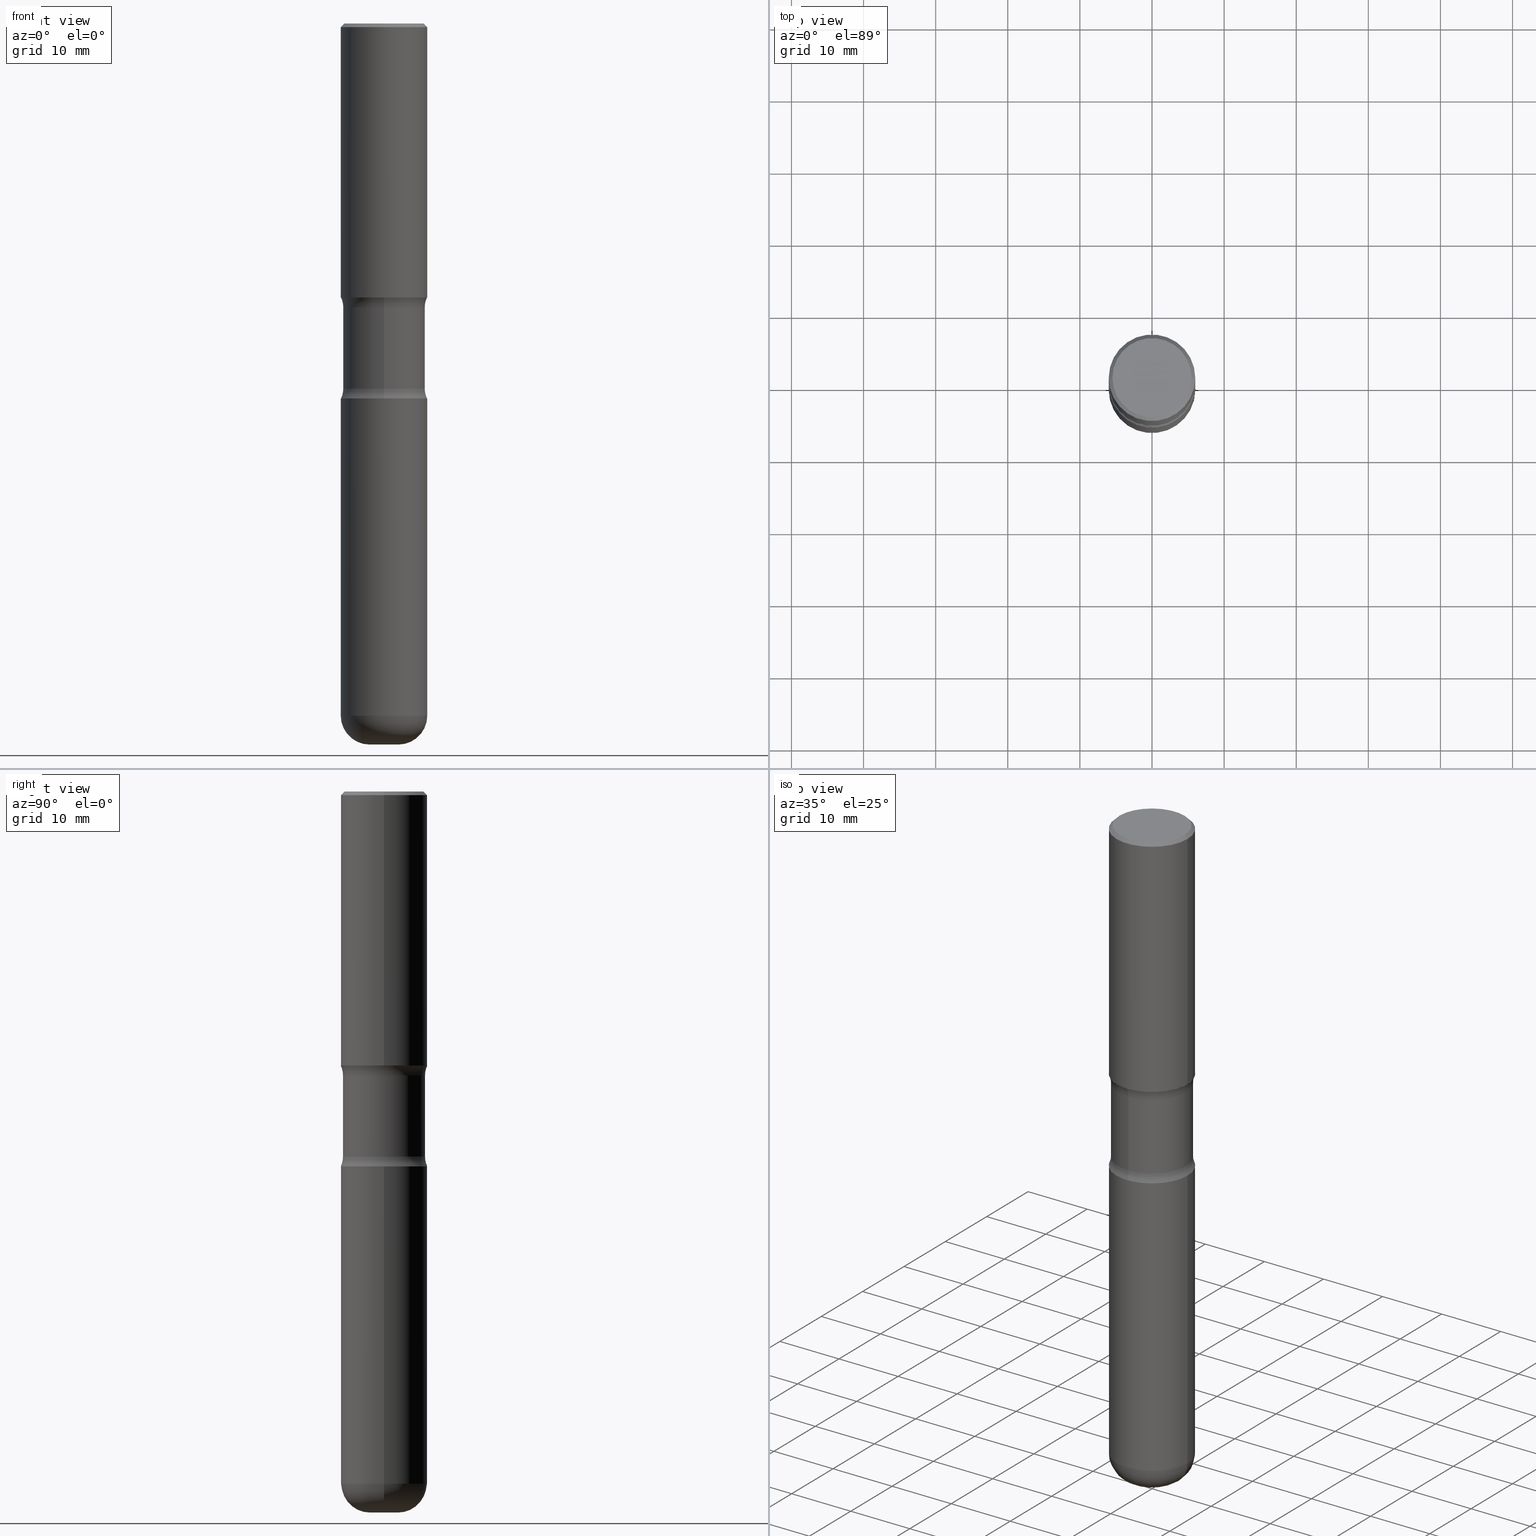
[diagram: canonical four-view strip — front | top / right | iso, engineering-drawing reading convention]
A machine part, canonical four-view strip (front | top / right | iso — engineering-drawing reading convention). The complete STEP part file that produces these views, byte-faithful:
ISO-10303-21;
HEADER;
FILE_DESCRIPTION (( 'STEP AP203' ),
    '1' );
FILE_NAME ('44750.STEP',
    '2024-03-02T02:45:20',
    ( '' ),
    ( '' ),
    'SwSTEP 2.0',
    'SolidWorks 2023',
    '' );
FILE_SCHEMA (( 'CONFIG_CONTROL_DESIGN' ));
ENDSEC;

DATA;
#1 = FACE_OUTER_BOUND ( 'NONE', #223, .T. ) ;
#2 = FACE_OUTER_BOUND ( 'NONE', #418, .T. ) ;
#3 = CIRCLE ( 'NONE', #72, 0.1249999999999999584 ) ;
#4 = FACE_OUTER_BOUND ( 'NONE', #334, .T. ) ;
#5 = PRODUCT_DEFINITION_FORMATION_WITH_SPECIFIED_SOURCE ( 'ANY', '', #66, .NOT_KNOWN. ) ;
#6 = APPROVAL_DATE_TIME ( #531, #339 ) ;
#7 = EDGE_CURVE ( 'NONE', #130, #552, #165, .T. ) ;
#8 = VERTEX_POINT ( 'NONE', #382 ) ;
#9 = APPLICATION_PROTOCOL_DEFINITION ( 'international standard', 'config_control_design', 1994, #52 ) ;
#10 = DIRECTION ( 'NONE',  ( 1.000000000000000000, -6.982962677686266711E-15, 4.876176775795936353E-29 ) ) ;
#11 = SECURITY_CLASSIFICATION_LEVEL ( 'unclassified' ) ;
#12 = CARTESIAN_POINT ( 'NONE',  ( 0.000000000000000000, 0.000000000000000000, 0.000000000000000000 ) ) ;
#13 = AXIS2_PLACEMENT_3D ( 'NONE', #348, #338, #520 ) ;
#14 = CIRCLE ( 'NONE', #142, 0.2362000000000002431 ) ;
#15 = ADVANCED_FACE ( 'NONE', ( #4 ), #179, .F. ) ;
#16 = APPROVAL_PERSON_ORGANIZATION ( #102, #339, #51 ) ;
#17 = VECTOR ( 'NONE', #360, 39.37007874015748143 ) ;
#18 = CALENDAR_DATE ( 2024, 1, 3 ) ;
#19 = FACE_OUTER_BOUND ( 'NONE', #471, .T. ) ;
#20 = LENGTH_MEASURE_WITH_UNIT ( LENGTH_MEASURE( 0.02539999999999999897 ), #314 );
#21 = CARTESIAN_POINT ( 'NONE',  ( 4.890937612370289799E-31, -6.982962677686315028E-17, -0.02000000000000006981 ) ) ;
#22 = DIRECTION ( 'NONE',  ( -1.000000000000000000, 6.982962677686267499E-15, 0.000000000000000000 ) ) ;
#23 = DIRECTION ( 'NONE',  ( -1.000000000000000000, 6.982962677686265922E-15, -4.883557194083112340E-29 ) ) ;
#24 = ORIENTED_EDGE ( 'NONE', *, *, #347, .F. ) ;
#25 = LINE ( 'NONE', #182, #547 ) ;
#26 = CARTESIAN_POINT ( 'NONE',  ( 2.437053974512555849E-15, 0.3489999999999931490, -1.993337582675860142 ) ) ;
#27 = ORIENTED_EDGE ( 'NONE', *, *, #59, .T. ) ;
#28 = CIRCLE ( 'NONE', #412, 0.1250000000000000278 ) ;
#29 = CARTESIAN_POINT ( 'NONE',  ( 4.872945789080098488E-29, -6.962134164869526576E-15, -1.993337582675859032 ) ) ;
#30 = CARTESIAN_POINT ( 'NONE',  ( 3.742693760873325103E-29, -5.479961055837061701E-15, -1.549962417324142638 ) ) ;
#31 = EDGE_LOOP ( 'NONE', ( #415, #184, #181, #326 ) ) ;
#32 = ORIENTED_EDGE ( 'NONE', *, *, #460, .T. ) ;
#33 = DIRECTION ( 'NONE',  ( 6.982962677686265922E-15, 1.000000000000000000, -3.658724991514636908E-15 ) ) ;
#34 = EDGE_CURVE ( 'NONE', #408, #105, #133, .T. ) ;
#35 = DIRECTION ( 'NONE',  ( 2.477013798679166358E-29, -3.446307114162222532E-15, -1.000000000000000000 ) ) ;
#36 = CARTESIAN_POINT ( 'NONE',  ( 9.627810689950883669E-29, -1.374596203102546341E-14, -3.937000000000000277 ) ) ;
#37 = VECTOR ( 'NONE', #121, 39.37007874015748143 ) ;
#38 = ORIENTED_EDGE ( 'NONE', *, *, #215, .T. ) ;
#39 = CARTESIAN_POINT ( 'NONE',  ( 5.006363740022213922E-29, -7.147760596879691357E-15, -2.047200000000000575 ) ) ;
#40 = ORIENTED_EDGE ( 'NONE', *, *, #530, .T. ) ;
#41 = EDGE_CURVE ( 'NONE', #428, #130, #537, .T. ) ;
#42 = DIRECTION ( 'NONE',  ( 2.477013798679166358E-29, -3.446307114162222532E-15, -1.000000000000000000 ) ) ;
#43 = EDGE_LOOP ( 'NONE', ( #430, #300, #258, #127 ) ) ;
#44 = FACE_OUTER_BOUND ( 'NONE', #129, .T. ) ;
#45 = AXIS2_PLACEMENT_3D ( 'NONE', #161, #383, #119 ) ;
#46 = ORIENTED_EDGE ( 'NONE', *, *, #154, .F. ) ;
#47 = LOCAL_TIME ( 21, 45, 20.00000000000000000, #364 ) ;
#48 = VECTOR ( 'NONE', #55, 39.37007874015748143 ) ;
#49 =( CONVERSION_BASED_UNIT ( 'INCH', #20 ) LENGTH_UNIT ( ) NAMED_UNIT ( #204 ) );
#50 = DIRECTION ( 'NONE',  ( 2.445468806185136597E-29, -3.491481338843145583E-15, -1.000000000000000000 ) ) ;
#51 = APPROVAL_ROLE ( '' ) ;
#52 = APPLICATION_CONTEXT ( 'configuration controlled 3d designs of mechanical parts and assemblies' ) ;
#53 = DIRECTION ( 'NONE',  ( -2.477013798679166358E-29, 3.446307114162222138E-15, 1.000000000000000000 ) ) ;
#54 = CARTESIAN_POINT ( 'NONE',  ( -0.07820000000000038032, -1.263866356012384910E-14, -3.779000000000000359 ) ) ;
#55 = DIRECTION ( 'NONE',  ( -2.445468806185136877E-29, 3.491481338843145188E-15, 1.000000000000000000 ) ) ;
#56 = ADVANCED_FACE ( 'NONE', ( #160 ), #341, .T. ) ;
#57 =( NAMED_UNIT ( * ) PLANE_ANGLE_UNIT ( ) SI_UNIT ( $, .RADIAN. ) );
#58 = DIRECTION ( 'NONE',  ( -2.445468806185136597E-29, 3.491481338843145583E-15, 1.000000000000000000 ) ) ;
#59 = EDGE_CURVE ( 'NONE', #456, #247, #291, .T. ) ;
#60 = CARTESIAN_POINT ( 'NONE',  ( 0.000000000000000000, 0.000000000000000000, 0.000000000000000000 ) ) ;
#61 = ORIENTED_EDGE ( 'NONE', *, *, #393, .T. ) ;
#62 = CIRCLE ( 'NONE', #82, 0.2162000000000000033 ) ;
#63 = DIRECTION ( 'NONE',  ( 1.000000000000000000, -6.860497997771530774E-15, 4.841352104320737374E-29 ) ) ;
#64 = ORIENTED_EDGE ( 'NONE', *, *, #7, .F. ) ;
#65 = ORIENTED_EDGE ( 'NONE', *, *, #524, .T. ) ;
#66 = PRODUCT ( '44750', '44750', '', ( #533 ) ) ;
#67 = FACE_OUTER_BOUND ( 'NONE', #282, .T. ) ;
#68 = ORIENTED_EDGE ( 'NONE', *, *, #373, .T. ) ;
#69 = DIRECTION ( 'NONE',  ( -2.445468806185136597E-29, 3.491481338843145583E-15, 1.000000000000000000 ) ) ;
#70 = VERTEX_POINT ( 'NONE', #243 ) ;
#71 = ADVANCED_FACE ( 'NONE', ( #1 ), #109, .F. ) ;
#72 = AXIS2_PLACEMENT_3D ( 'NONE', #26, #23, #553 ) ;
#73 = DIRECTION ( 'NONE',  ( -2.445468806185136597E-29, 3.491481338843145583E-15, 1.000000000000000000 ) ) ;
#74 = ORIENTED_EDGE ( 'NONE', *, *, #34, .F. ) ;
#75 = ORIENTED_EDGE ( 'NONE', *, *, #369, .T. ) ;
#76 = DIRECTION ( 'NONE',  ( 1.000000000000000000, -6.982962677686267499E-15, 0.000000000000000000 ) ) ;
#77 = ORIENTED_EDGE ( 'NONE', *, *, #222, .T. ) ;
#78 = EDGE_CURVE ( 'NONE', #406, #420, #81, .T. ) ;
#79 = CARTESIAN_POINT ( 'NONE',  ( -0.2362000000000002153, -8.492732346318610806E-15, -2.047200000000000575 ) ) ;
#80 = VERTEX_POINT ( 'NONE', #316 ) ;
#81 = CIRCLE ( 'NONE', #251, 0.1579999999999998628 ) ;
#82 = AXIS2_PLACEMENT_3D ( 'NONE', #515, #201, #237 ) ;
#83 = LINE ( 'NONE', #461, #449 ) ;
#84 = AXIS2_PLACEMENT_3D ( 'NONE', #96, #143, #307 ) ;
#85 = DIRECTION ( 'NONE',  ( 0.7071067811865471286, -7.319954787623254468E-15, -0.7071067811865479058 ) ) ;
#86 = DIRECTION ( 'NONE',  ( 2.477013798679166358E-29, -3.446307114162222532E-15, -1.000000000000000000 ) ) ;
#87 = ORIENTED_EDGE ( 'NONE', *, *, #550, .T. ) ;
#88 = EDGE_CURVE ( 'NONE', #508, #420, #220, .T. ) ;
#89 = DIRECTION ( 'NONE',  ( -2.445468806185136597E-29, 3.491481338843145583E-15, 1.000000000000000000 ) ) ;
#90 = EDGE_LOOP ( 'NONE', ( #349, #152, #38, #227 ) ) ;
#91 = APPLICATION_PROTOCOL_DEFINITION ( 'international standard', 'config_control_design', 1994, #320 ) ;
#92 = AXIS2_PLACEMENT_3D ( 'NONE', #450, #63, #116 ) ;
#93 = DIRECTION ( 'NONE',  ( 6.982962677686265922E-15, 1.000000000000000000, -3.469747663417773452E-15 ) ) ;
#94 = EDGE_CURVE ( 'NONE', #473, #70, #498, .T. ) ;
#95 = CARTESIAN_POINT ( 'NONE',  ( 0.000000000000000000, 0.000000000000000000, 0.000000000000000000 ) ) ;
#96 = CARTESIAN_POINT ( 'NONE',  ( 3.658665880933583510E-29, -5.223605231043231238E-15, -1.496100000000000430 ) ) ;
#97 = ORIENTED_EDGE ( 'NONE', *, *, #41, .T. ) ;
#98 = DIRECTION ( 'NONE',  ( 1.000000000000000000, 0.000000000000000000, 0.000000000000000000 ) ) ;
#99 = CARTESIAN_POINT ( 'NONE',  ( 5.006363740022213922E-29, -7.147760596879691357E-15, -2.047200000000000575 ) ) ;
#100 = PLANE ( 'NONE',  #394 ) ;
#101 = AXIS2_PLACEMENT_3D ( 'NONE', #95, #433, #98 ) ;
#102 = PERSON_AND_ORGANIZATION ( #275, #487 ) ;
#103 = DIRECTION ( 'NONE',  ( -6.982962677686265922E-15, -1.000000000000000000, 3.446307114162222138E-15 ) ) ;
#104 = DIRECTION ( 'NONE',  ( -1.000000000000000000, 6.982962677686265922E-15, -4.876176775795935793E-29 ) ) ;
#105 = VERTEX_POINT ( 'NONE', #261 ) ;
#106 = DIRECTION ( 'NONE',  ( -2.445468806185136597E-29, 3.491481338843145583E-15, 1.000000000000000000 ) ) ;
#107 = ORIENTED_EDGE ( 'NONE', *, *, #215, .F. ) ;
#108 = CIRCLE ( 'NONE', #259, 0.2362000000000000210 ) ;
#109 = TOROIDAL_SURFACE ( 'NONE', #405, 0.3490000000000000879, 0.1249999999999999584 ) ;
#110 = DIRECTION ( 'NONE',  ( 1.000000000000000000, -6.982962677686266711E-15, 4.876655451117825523E-29 ) ) ;
#111 = ORIENTED_EDGE ( 'NONE', *, *, #426, .T. ) ;
#112 = FACE_OUTER_BOUND ( 'NONE', #545, .T. ) ;
#113 = ADVANCED_FACE ( 'NONE', ( #312 ), #525, .F. ) ;
#114 = EDGE_LOOP ( 'NONE', ( #32, #490 ) ) ;
#115 = ORIENTED_EDGE ( 'NONE', *, *, #342, .T. ) ;
#116 = DIRECTION ( 'NONE',  ( 6.860497997771532351E-15, 1.000000000000000000, 0.000000000000000000 ) ) ;
#117 = CIRCLE ( 'NONE', #178, 0.07820000000000038032 ) ;
#118 = AXIS2_PLACEMENT_3D ( 'NONE', #252, #400, #207 ) ;
#119 = DIRECTION ( 'NONE',  ( 1.000000000000000000, -6.982962677686265922E-15, 4.883557194083112901E-29 ) ) ;
#120 = CARTESIAN_POINT ( 'NONE',  ( -0.2362000000000000210, 1.579546157692633424E-15, -0.02000000000000006981 ) ) ;
#121 = DIRECTION ( 'NONE',  ( 2.477013798679166639E-29, -3.446307114162222138E-15, -1.000000000000000000 ) ) ;
#122 = CARTESIAN_POINT ( 'NONE',  ( 0.000000000000000000, 0.000000000000000000, 0.000000000000000000 ) ) ;
#123 = ORIENTED_EDGE ( 'NONE', *, *, #470, .F. ) ;
#124 = AXIS2_PLACEMENT_3D ( 'NONE', #224, #221, #216 ) ;
#125 = DIRECTION ( 'NONE',  ( 6.982962677686265922E-15, 1.000000000000000000, -3.469747663417773452E-15 ) ) ;
#126 = AXIS2_PLACEMENT_3D ( 'NONE', #12, #58, #10 ) ;
#127 = ORIENTED_EDGE ( 'NONE', *, *, #369, .F. ) ;
#128 = DIRECTION ( 'NONE',  ( 6.982962677686265922E-15, 1.000000000000000000, -3.469747663417773452E-15 ) ) ;
#129 = EDGE_LOOP ( 'NONE', ( #64, #380, #523, #166 ) ) ;
#130 = VERTEX_POINT ( 'NONE', #435 ) ;
#131 = TOROIDAL_SURFACE ( 'NONE', #45, 0.07820000000000038032, 0.1579999999999998628 ) ;
#132 = FACE_OUTER_BOUND ( 'NONE', #318, .T. ) ;
#133 = CIRCLE ( 'NONE', #518, 0.2362000000000002153 ) ;
#134 = CC_DESIGN_PERSON_AND_ORGANIZATION_ASSIGNMENT ( #206, #391, ( #5 ) ) ;
#135 = PERSON_AND_ORGANIZATION ( #275, #487 ) ;
#136 = DIRECTION ( 'NONE',  ( -2.445468806185136597E-29, 3.491481338843145583E-15, 1.000000000000000000 ) ) ;
#137 = PERSON_AND_ORGANIZATION_ROLE ( 'creator' ) ;
#138 = ADVANCED_FACE ( 'NONE', ( #484 ), #538, .T. ) ;
#139 = DIRECTION ( 'NONE',  ( 7.105427357601001859E-15, 1.000000000000000000, -3.491481338843145583E-15 ) ) ;
#140 = CARTESIAN_POINT ( 'NONE',  ( 3.658665880933583510E-29, -5.223605231043231238E-15, -1.496100000000000430 ) ) ;
#141 = ADVANCED_FACE ( 'NONE', ( #488 ), #356, .F. ) ;
#142 = AXIS2_PLACEMENT_3D ( 'NONE', #337, #42, #125 ) ;
#143 = DIRECTION ( 'NONE',  ( 2.477013798679166358E-29, -3.446307114162222138E-15, -1.000000000000000000 ) ) ;
#144 = DIRECTION ( 'NONE',  ( 1.000000000000000000, -6.982962677686267499E-15, 0.000000000000000000 ) ) ;
#145 = DIRECTION ( 'NONE',  ( 1.000000000000000000, -6.982962677686265922E-15, 4.883557194083112901E-29 ) ) ;
#146 = EDGE_LOOP ( 'NONE', ( #367, #27, #40, #225 ) ) ;
#147 = AXIS2_PLACEMENT_3D ( 'NONE', #351, #442, #398 ) ;
#148 = CIRCLE ( 'NONE', #171, 0.2362000000000004374 ) ;
#149 = DIRECTION ( 'NONE',  ( 2.477013798679166358E-29, -3.446307114162222532E-15, -1.000000000000000000 ) ) ;
#150 = DIRECTION ( 'NONE',  ( 6.982962677686265922E-15, 1.000000000000000000, -3.658724991514636908E-15 ) ) ;
#151 = ADVANCED_FACE ( 'NONE', ( #132 ), #100, .F. ) ;
#152 = ORIENTED_EDGE ( 'NONE', *, *, #41, .F. ) ;
#153 = DIRECTION ( 'NONE',  ( 6.982962677686265922E-15, 1.000000000000000000, -2.439149994343091666E-15 ) ) ;
#154 = EDGE_CURVE ( 'NONE', #130, #428, #557, .T. ) ;
#155 = EDGE_LOOP ( 'NONE', ( #219, #65, #189, #387 ) ) ;
#156 = AXIS2_PLACEMENT_3D ( 'NONE', #30, #541, #497 ) ;
#157 = DIRECTION ( 'NONE',  ( -6.982962677686266711E-15, -1.000000000000000000, 3.491481338843145583E-15 ) ) ;
#158 = DIRECTION ( 'NONE',  ( -2.445468806185136597E-29, 3.491481338843145583E-15, 1.000000000000000000 ) ) ;
#159 = CARTESIAN_POINT ( 'NONE',  ( 0.07820000000000038032, -1.374037566088331776E-14, -3.779000000000000359 ) ) ;
#160 = FACE_OUTER_BOUND ( 'NONE', #238, .T. ) ;
#161 = CARTESIAN_POINT ( 'NONE',  ( 9.241426618573632392E-29, -1.319430797948824935E-14, -3.779000000000000359 ) ) ;
#162 = AXIS2_PLACEMENT_3D ( 'NONE', #168, #392, #172 ) ;
#163 = ADVANCED_FACE ( 'NONE', ( #264 ), #306, .T. ) ;
#164 = CYLINDRICAL_SURFACE ( 'NONE', #358, 0.2240000000000000602 ) ;
#165 = LINE ( 'NONE', #235, #37 ) ;
#166 = ORIENTED_EDGE ( 'NONE', *, *, #331, .F. ) ;
#167 = DATE_AND_TIME ( #255, #422 ) ;
#168 = CARTESIAN_POINT ( 'NONE',  ( 2.437053974512545200E-15, 0.3489999999999947033, -1.549962417324143749 ) ) ;
#169 = EDGE_CURVE ( 'NONE', #70, #467, #177, .T. ) ;
#170 = PERSON_AND_ORGANIZATION ( #275, #487 ) ;
#171 = AXIS2_PLACEMENT_3D ( 'NONE', #459, #73, #144 ) ;
#172 = DIRECTION ( 'NONE',  ( -6.982962677686267499E-15, -1.000000000000000000, 0.000000000000000000 ) ) ;
#173 = LOCAL_TIME ( 21, 45, 20.00000000000000000, #399 ) ;
#174 = DATE_AND_TIME ( #18, #325 ) ;
#175 = DIRECTION ( 'NONE',  ( 1.000000000000000000, -6.982962677686267499E-15, 0.000000000000000000 ) ) ;
#176 = DIRECTION ( 'NONE',  ( 2.477013798679166358E-29, -3.446307114162222532E-15, -1.000000000000000000 ) ) ;
#177 = LINE ( 'NONE', #432, #48 ) ;
#178 = AXIS2_PLACEMENT_3D ( 'NONE', #36, #241, #429 ) ;
#179 = TOROIDAL_SURFACE ( 'NONE', #336, 0.3490000000000001434, 0.1250000000000000555 ) ;
#180 = EDGE_CURVE ( 'NONE', #303, #467, #529, .T. ) ;
#181 = ORIENTED_EDGE ( 'NONE', *, *, #460, .F. ) ;
#182 = CARTESIAN_POINT ( 'NONE',  ( -0.2362000000000002709, 1.678301941865358564E-15, -1.161852468318210018E-29 ) ) ;
#183 = CARTESIAN_POINT ( 'NONE',  ( -2.394313801222228108E-15, -0.3490000000000056390, -1.549962417324141528 ) ) ;
#184 = ORIENTED_EDGE ( 'NONE', *, *, #308, .T. ) ;
#185 = EDGE_LOOP ( 'NONE', ( #281, #61, #87, #74 ) ) ;
#186 = AXIS2_PLACEMENT_3D ( 'NONE', #455, #69, #321 ) ;
#187 = CIRCLE ( 'NONE', #162, 0.1250000000000000278 ) ;
#188 = CARTESIAN_POINT ( 'NONE',  ( 5.219257071676098903E-46, -7.451715851902235727E-32, -2.134256245050205639E-17 ) ) ;
#189 = ORIENTED_EDGE ( 'NONE', *, *, #466, .T. ) ;
#190 = DIRECTION ( 'NONE',  ( 1.000000000000000000, -6.982962677686266711E-15, 4.876176775795936353E-29 ) ) ;
#191 = DIRECTION ( 'NONE',  ( 6.982962677686265133E-15, 1.000000000000000000, -3.446307114162222532E-15 ) ) ;
#192 = AXIS2_PLACEMENT_3D ( 'NONE', #423, #465, #153 ) ;
#193 = DIRECTION ( 'NONE',  ( 2.477013798679166358E-29, -3.446307114162222532E-15, -1.000000000000000000 ) ) ;
#194 = ORIENTED_EDGE ( 'NONE', *, *, #470, .T. ) ;
#195 = CARTESIAN_POINT ( 'NONE',  ( 4.890937612370289799E-31, -6.982962677686315028E-17, -0.02000000000000006981 ) ) ;
#196 = EDGE_LOOP ( 'NONE', ( #97, #512, #245, #454 ) ) ;
#197 = ADVANCED_FACE ( 'NONE', ( #19 ), #535, .F. ) ;
#198 = DIRECTION ( 'NONE',  ( 2.477013798679166639E-29, -3.446307114162222138E-15, -1.000000000000000000 ) ) ;
#199 = DIRECTION ( 'NONE',  ( 1.000000000000000000, -6.982962677686266711E-15, 0.000000000000000000 ) ) ;
#200 = AXIS2_PLACEMENT_3D ( 'NONE', #296, #333, #299 ) ;
#201 = DIRECTION ( 'NONE',  ( -2.445468806185136597E-29, 3.491481338843145583E-15, 1.000000000000000000 ) ) ;
#202 = EDGE_LOOP ( 'NONE', ( #332, #270 ) ) ;
#203 = PRODUCT_RELATED_PRODUCT_CATEGORY ( 'detail', '', ( #66 ) ) ;
#204 = DIMENSIONAL_EXPONENTS ( 1.000000000000000000, 0.000000000000000000, 0.000000000000000000, 0.000000000000000000, 0.000000000000000000, 0.000000000000000000, 0.000000000000000000 ) ;
#205 = DIRECTION ( 'NONE',  ( 1.000000000000000000, -6.982962677686267499E-15, 0.000000000000000000 ) ) ;
#206 = PERSON_AND_ORGANIZATION ( #275, #487 ) ;
#207 = DIRECTION ( 'NONE',  ( 1.000000000000000000, -6.982962677686263555E-15, 0.000000000000000000 ) ) ;
#208 = CALENDAR_DATE ( 2024, 1, 3 ) ;
#209 = AXIS2_PLACEMENT_3D ( 'NONE', #122, #375, #190 ) ;
#210 = DIRECTION ( 'NONE',  ( 1.000000000000000000, -6.982962677686265922E-15, 4.876176775795935793E-29 ) ) ;
#211 = CARTESIAN_POINT ( 'NONE',  ( 5.006363740022213922E-29, -7.147760596879691357E-15, -2.047200000000000575 ) ) ;
#212 = EDGE_CURVE ( 'NONE', #549, #499, #397, .T. ) ;
#213 = APPROVAL_DATE_TIME ( #253, #361 ) ;
#214 = DIRECTION ( 'NONE',  ( 2.477013798679166358E-29, -3.446307114162222532E-15, -1.000000000000000000 ) ) ;
#215 = EDGE_CURVE ( 'NONE', #428, #499, #187, .T. ) ;
#216 = DIRECTION ( 'NONE',  ( 1.000000000000000000, -6.982962677686266711E-15, 0.000000000000000000 ) ) ;
#217 = VECTOR ( 'NONE', #198, 39.37007874015748143 ) ;
#218 = ORIENTED_EDGE ( 'NONE', *, *, #78, .T. ) ;
#219 = ORIENTED_EDGE ( 'NONE', *, *, #78, .F. ) ;
#220 = CIRCLE ( 'NONE', #118, 0.2362000000000003264 ) ;
#221 = DIRECTION ( 'NONE',  ( -2.445468806185136597E-29, 3.491481338843145583E-15, 1.000000000000000000 ) ) ;
#222 = EDGE_CURVE ( 'NONE', #467, #247, #108, .T. ) ;
#223 = EDGE_LOOP ( 'NONE', ( #462, #123, #75, #451 ) ) ;
#224 = CARTESIAN_POINT ( 'NONE',  ( 9.627810689950883669E-29, -1.374596203102546341E-14, -3.937000000000000277 ) ) ;
#225 = ORIENTED_EDGE ( 'NONE', *, *, #180, .F. ) ;
#226 = CARTESIAN_POINT ( 'NONE',  ( 9.241426618573632392E-29, -1.319430797948824935E-14, -3.779000000000000359 ) ) ;
#227 = ORIENTED_EDGE ( 'NONE', *, *, #477, .T. ) ;
#228 = AXIS2_PLACEMENT_3D ( 'NONE', #188, #551, #110 ) ;
#229 = CC_DESIGN_APPROVAL ( #319, ( #271 ) ) ;
#230 = EDGE_CURVE ( 'NONE', #542, #80, #324, .T. ) ;
#231 = DIRECTION ( 'NONE',  ( -2.445468806185136877E-29, 3.491481338843145188E-15, 1.000000000000000000 ) ) ;
#232 = ORIENTED_EDGE ( 'NONE', *, *, #477, .F. ) ;
#233 = ORIENTED_EDGE ( 'NONE', *, *, #347, .T. ) ;
#234 = DIRECTION ( 'NONE',  ( -2.445468806185136877E-29, 3.491481338843145188E-15, 1.000000000000000000 ) ) ;
#235 = CARTESIAN_POINT ( 'NONE',  ( -1.536751551500726315E-15, -0.2240000000000137159, -3.937000000000000277 ) ) ;
#236 = MANIFOLD_SOLID_BREP ( 'Body-Move/Copy2[1]', #478 ) ;
#237 = DIRECTION ( 'NONE',  ( 1.000000000000000000, -6.982962677686266711E-15, 4.876655451117825523E-29 ) ) ;
#238 = EDGE_LOOP ( 'NONE', ( #267, #464, #371, #24 ) ) ;
#239 = AXIS2_PLACEMENT_3D ( 'NONE', #370, #269, #489 ) ;
#240 = APPROVAL_PERSON_ORGANIZATION ( #311, #319, #500 ) ;
#241 = DIRECTION ( 'NONE',  ( -2.445468806185136597E-29, 3.491481338843145583E-15, 1.000000000000000000 ) ) ;
#242 = CC_DESIGN_DATE_AND_TIME_ASSIGNMENT ( #174, #355, ( #271 ) ) ;
#243 = CARTESIAN_POINT ( 'NONE',  ( -0.2362000000000004374, -9.684154870446855490E-16, -1.496100000000000430 ) ) ;
#244 = CARTESIAN_POINT ( 'NONE',  ( 1.564183639801820828E-15, 0.2239999999999864044, -3.937000000000001165 ) ) ;
#245 = ORIENTED_EDGE ( 'NONE', *, *, #401, .F. ) ;
#246 = DIRECTION ( 'NONE',  ( 2.477013798679166358E-29, -3.446307114162222532E-15, -1.000000000000000000 ) ) ;
#247 = VERTEX_POINT ( 'NONE', #330 ) ;
#248 = CC_DESIGN_PERSON_AND_ORGANIZATION_ASSIGNMENT ( #474, #137, ( #5 ) ) ;
#249 = AXIS2_PLACEMENT_3D ( 'NONE', #544, #493, #104 ) ;
#250 = PERSON_AND_ORGANIZATION ( #275, #487 ) ;
#251 = AXIS2_PLACEMENT_3D ( 'NONE', #54, #139, #353 ) ;
#252 = CARTESIAN_POINT ( 'NONE',  ( 9.241426618573632392E-29, -1.319430797948824935E-14, -3.779000000000000359 ) ) ;
#253 = DATE_AND_TIME ( #208, #496 ) ;
#254 = CARTESIAN_POINT ( 'NONE',  ( 3.641281435570124005E-29, -5.248500746264888618E-15, -1.496100000000000430 ) ) ;
#255 = CALENDAR_DATE ( 2024, 1, 3 ) ;
#256 = CARTESIAN_POINT ( 'NONE',  ( 4.874644878630298658E-29, -6.959700971927467721E-15, -1.993337582675859032 ) ) ;
#257 = ADVANCED_FACE ( 'NONE', ( #112 ), #335, .T. ) ;
#258 = ORIENTED_EDGE ( 'NONE', *, *, #331, .T. ) ;
#259 = AXIS2_PLACEMENT_3D ( 'NONE', #21, #136, #175 ) ;
#260 = COORDINATED_UNIVERSAL_TIME_OFFSET ( 5, 0, .BEHIND. ) ;
#261 = CARTESIAN_POINT ( 'NONE',  ( 0.2362000000000002153, -8.797136381349187883E-15, -2.047200000000000575 ) ) ;
#262 = AXIS2_PLACEMENT_3D ( 'NONE', #357, #389, #210 ) ;
#263 = APPROVAL_ROLE ( '' ) ;
#264 = FACE_OUTER_BOUND ( 'NONE', #146, .T. ) ;
#265 = ADVANCED_FACE ( 'NONE', ( #501 ), #266, .T. ) ;
#266 = PLANE ( 'NONE',  #249 ) ;
#267 = ORIENTED_EDGE ( 'NONE', *, *, #94, .T. ) ;
#268 = ADVANCED_FACE ( 'NONE', ( #67 ), #366, .T. ) ;
#269 = DIRECTION ( 'NONE',  ( 2.438088387897960049E-29, -3.491481338843145188E-15, -1.000000000000000000 ) ) ;
#270 = ORIENTED_EDGE ( 'NONE', *, *, #524, .F. ) ;
#271 = SECURITY_CLASSIFICATION ( '', '', #11 ) ;
#272 = ORIENTED_EDGE ( 'NONE', *, *, #212, .T. ) ;
#273 = LINE ( 'NONE', #453, #403 ) ;
#274 = ORIENTED_EDGE ( 'NONE', *, *, #298, .T. ) ;
#275 = PERSON ( 'UNSPECIFIED', 'UNSPECIFIED', 'UNSPECIFIED', ('UNSPECIFIED'), ('UNSPECIFIED'), ('UNSPECIFIED') ) ;
#276 = DESIGN_CONTEXT ( 'detailed design', #320, 'design' ) ;
#277 = DIRECTION ( 'NONE',  ( 2.477013798679166358E-29, -3.446307114162222532E-15, -1.000000000000000000 ) ) ;
#278 = ORIENTED_EDGE ( 'NONE', *, *, #230, .T. ) ;
#279 = ADVANCED_FACE ( 'NONE', ( #323 ), #414, .F. ) ;
#280 = FACE_OUTER_BOUND ( 'NONE', #90, .T. ) ;
#281 = ORIENTED_EDGE ( 'NONE', *, *, #308, .F. ) ;
#282 = EDGE_LOOP ( 'NONE', ( #425, #115, #233, #505 ) ) ;
#283 = AXIS2_PLACEMENT_3D ( 'NONE', #404, #277, #150 ) ;
#284 = CC_DESIGN_APPROVAL ( #361, ( #354 ) ) ;
#285 = AXIS2_PLACEMENT_3D ( 'NONE', #482, #480, #310 ) ;
#286 = CARTESIAN_POINT ( 'NONE',  ( 9.687424416766102159E-29, -1.366059178122345804E-14, -3.937000000000000721 ) ) ;
#287 = DIRECTION ( 'NONE',  ( 6.982962677686265922E-15, 1.000000000000000000, -2.439149994343091666E-15 ) ) ;
#288 = ORIENTED_EDGE ( 'NONE', *, *, #328, .T. ) ;
#289 = EDGE_CURVE ( 'NONE', #542, #552, #352, .T. ) ;
#290 = FACE_OUTER_BOUND ( 'NONE', #155, .T. ) ;
#291 = LINE ( 'NONE', #384, #295 ) ;
#292 = AXIS2_PLACEMENT_3D ( 'NONE', #159, #157, #559 ) ;
#293 = AXIS2_PLACEMENT_3D ( 'NONE', #463, #193, #128 ) ;
#294 =( GEOMETRIC_REPRESENTATION_CONTEXT ( 3 ) GLOBAL_UNCERTAINTY_ASSIGNED_CONTEXT ( ( #511 ) ) GLOBAL_UNIT_ASSIGNED_CONTEXT ( ( #49, #57, #483 ) ) REPRESENTATION_CONTEXT ( 'NONE', 'WORKASPACE' ) );
#295 = VECTOR ( 'NONE', #85, 39.37007874015748143 ) ;
#296 = CARTESIAN_POINT ( 'NONE',  ( 4.890937612370289799E-31, -6.982962677686315028E-17, -0.02000000000000006981 ) ) ;
#297 = CARTESIAN_POINT ( 'NONE',  ( 0.000000000000000000, 0.000000000000000000, 0.000000000000000000 ) ) ;
#298 = EDGE_CURVE ( 'NONE', #554, #406, #365, .T. ) ;
#299 = DIRECTION ( 'NONE',  ( -1.000000000000000000, 6.982962677686267499E-15, 0.000000000000000000 ) ) ;
#300 = ORIENTED_EDGE ( 'NONE', *, *, #289, .T. ) ;
#301 = ADVANCED_FACE ( 'NONE', ( #280 ), #437, .F. ) ;
#302 = PERSON_AND_ORGANIZATION_ROLE ( 'design_owner' ) ;
#303 = VERTEX_POINT ( 'NONE', #447 ) ;
#304 = CIRCLE ( 'NONE', #228, 0.2162000000000000033 ) ;
#305 = COORDINATED_UNIVERSAL_TIME_OFFSET ( 5, 0, .BEHIND. ) ;
#306 = CONICAL_SURFACE ( 'NONE', #327, 0.2362000000000000210, 0.7853981633974477239 ) ;
#307 = DIRECTION ( 'NONE',  ( 6.982962677686265922E-15, 1.000000000000000000, -3.446307114162222138E-15 ) ) ;
#308 = EDGE_CURVE ( 'NONE', #420, #408, #25, .T. ) ;
#309 = PERSON_AND_ORGANIZATION_ROLE ( 'creator' ) ;
#310 = DIRECTION ( 'NONE',  ( -1.000000000000000000, 6.982962677686265922E-15, -4.876176775795935793E-29 ) ) ;
#311 = PERSON_AND_ORGANIZATION ( #275, #487 ) ;
#312 = FACE_OUTER_BOUND ( 'NONE', #114, .T. ) ;
#313 = AXIS2_PLACEMENT_3D ( 'NONE', #60, #106, #504 ) ;
#314 =( LENGTH_UNIT ( ) NAMED_UNIT ( * ) SI_UNIT ( $, .METRE. ) );
#315 = CC_DESIGN_APPROVAL ( #339, ( #5 ) ) ;
#316 = CARTESIAN_POINT ( 'NONE',  ( 1.649375784469547210E-15, 0.2361999999999930544, -2.047200000000001463 ) ) ;
#317 = DIRECTION ( 'NONE',  ( -2.445468806185136597E-29, 3.491481338843145583E-15, 1.000000000000000000 ) ) ;
#318 = EDGE_LOOP ( 'NONE', ( #194, #278 ) ) ;
#319 = APPROVAL ( #359, 'UNSPECIFIED' ) ;
#320 = APPLICATION_CONTEXT ( 'configuration controlled 3d designs of mechanical parts and assemblies' ) ;
#321 = DIRECTION ( 'NONE',  ( 1.000000000000000000, -6.982962677686263555E-15, 0.000000000000000000 ) ) ;
#322 = AXIS2_PLACEMENT_3D ( 'NONE', #297, #158, #510 ) ;
#323 = FACE_OUTER_BOUND ( 'NONE', #413, .T. ) ;
#324 = CIRCLE ( 'NONE', #421, 0.2362000000000002431 ) ;
#325 = LOCAL_TIME ( 21, 45, 20.00000000000000000, #481 ) ;
#326 = ORIENTED_EDGE ( 'NONE', *, *, #550, .F. ) ;
#327 = AXIS2_PLACEMENT_3D ( 'NONE', #445, #50, #22 ) ;
#328 = EDGE_CURVE ( 'NONE', #456, #303, #304, .T. ) ;
#329 = DIRECTION ( 'NONE',  ( 6.982962677686265133E-15, 1.000000000000000000, -3.446307114162222532E-15 ) ) ;
#330 = CARTESIAN_POINT ( 'NONE',  ( 0.2362000000000000210, -1.690279253850499166E-15, -0.02000000000000006981 ) ) ;
#331 = EDGE_CURVE ( 'NONE', #552, #8, #395, .T. ) ;
#332 = ORIENTED_EDGE ( 'NONE', *, *, #298, .F. ) ;
#333 = DIRECTION ( 'NONE',  ( 2.445468806185136597E-29, -3.491481338843145583E-15, -1.000000000000000000 ) ) ;
#334 = EDGE_LOOP ( 'NONE', ( #46, #68, #272, #107 ) ) ;
#335 = TOROIDAL_SURFACE ( 'NONE', #486, 0.07820000000000038032, 0.1579999999999998628 ) ;
#336 = AXIS2_PLACEMENT_3D ( 'NONE', #517, #35, #191 ) ;
#337 = CARTESIAN_POINT ( 'NONE',  ( 5.006363740022213922E-29, -7.147760596879691357E-15, -2.047200000000000575 ) ) ;
#338 = DIRECTION ( 'NONE',  ( 2.477013798679166358E-29, -3.446307114162222532E-15, -1.000000000000000000 ) ) ;
#339 = APPROVAL ( #396, 'UNSPECIFIED' ) ;
#340 = CARTESIAN_POINT ( 'NONE',  ( 0.2362000000000002709, -1.484368376395774588E-14, -3.779000000000000359 ) ) ;
#341 = CYLINDRICAL_SURFACE ( 'NONE', #322, 0.2362000000000002431 ) ;
#342 = EDGE_CURVE ( 'NONE', #70, #473, #148, .T. ) ;
#343 = FACE_OUTER_BOUND ( 'NONE', #185, .T. ) ;
#344 = ORIENTED_EDGE ( 'NONE', *, *, #59, .F. ) ;
#345 = CIRCLE ( 'NONE', #292, 0.1579999999999998628 ) ;
#346 = CARTESIAN_POINT ( 'NONE',  ( 1.649375784469533799E-15, 0.2361999999999949973, -1.496100000000001318 ) ) ;
#347 = EDGE_CURVE ( 'NONE', #473, #247, #273, .T. ) ;
#348 = CARTESIAN_POINT ( 'NONE',  ( 3.774699386512239440E-29, -5.434127178275053399E-15, -1.549962417324142638 ) ) ;
#349 = ORIENTED_EDGE ( 'NONE', *, *, #373, .F. ) ;
#350 = CALENDAR_DATE ( 2024, 1, 3 ) ;
#351 = CARTESIAN_POINT ( 'NONE',  ( 3.774699386512239440E-29, -5.434127178275053399E-15, -1.549962417324142638 ) ) ;
#352 = CIRCLE ( 'NONE', #92, 0.1249999999999999584 ) ;
#353 = DIRECTION ( 'NONE',  ( -1.000000000000000000, 7.105427357600997914E-15, 0.000000000000000000 ) ) ;
#354 = PRODUCT_DEFINITION ( 'UNKNOWN', '', #5, #276 ) ;
#355 = DATE_TIME_ROLE ( 'classification_date' ) ;
#356 = PLANE ( 'NONE',  #262 ) ;
#357 = CARTESIAN_POINT ( 'NONE',  ( 3.658665880933583510E-29, -5.223605231043231238E-15, -1.496100000000000430 ) ) ;
#358 = AXIS2_PLACEMENT_3D ( 'NONE', #286, #246, #287 ) ;
#359 = APPROVAL_STATUS ( 'not_yet_approved' ) ;
#360 = DIRECTION ( 'NONE',  ( -0.7071067811865471286, 2.468850131082252722E-15, -0.7071067811865479058 ) ) ;
#361 = APPROVAL ( #388, 'UNSPECIFIED' ) ;
#362 = DIRECTION ( 'NONE',  ( 6.860497997771532351E-15, 1.000000000000000000, 0.000000000000000000 ) ) ;
#363 = DIRECTION ( 'NONE',  ( -2.445468806185136877E-29, 3.491481338843145188E-15, 1.000000000000000000 ) ) ;
#364 = COORDINATED_UNIVERSAL_TIME_OFFSET ( 5, 0, .BEHIND. ) ;
#365 = CIRCLE ( 'NONE', #124, 0.07820000000000038032 ) ;
#366 = CYLINDRICAL_SURFACE ( 'NONE', #313, 0.2362000000000002431 ) ;
#367 = ORIENTED_EDGE ( 'NONE', *, *, #328, .F. ) ;
#368 = AXIS2_PLACEMENT_3D ( 'NONE', #140, #532, #205 ) ;
#369 = EDGE_CURVE ( 'NONE', #80, #8, #3, .T. ) ;
#370 = CARTESIAN_POINT ( 'NONE',  ( 1.509716530915770718E-15, 0.2162000000000000033, -7.655295466831390880E-16 ) ) ;
#371 = ORIENTED_EDGE ( 'NONE', *, *, #530, .F. ) ;
#372 = FACE_OUTER_BOUND ( 'NONE', #43, .T. ) ;
#373 = EDGE_CURVE ( 'NONE', #130, #549, #28, .T. ) ;
#374 = EDGE_LOOP ( 'NONE', ( #539, #457 ) ) ;
#375 = DIRECTION ( 'NONE',  ( -2.445468806185136597E-29, 3.491481338843145583E-15, 1.000000000000000000 ) ) ;
#376 = CC_DESIGN_PERSON_AND_ORGANIZATION_ASSIGNMENT ( #135, #302, ( #66 ) ) ;
#377 = CARTESIAN_POINT ( 'NONE',  ( 5.006363740022213922E-29, -7.147760596879691357E-15, -2.047200000000000575 ) ) ;
#378 = TOROIDAL_SURFACE ( 'NONE', #536, 0.3490000000000000879, 0.1249999999999999584 ) ;
#379 = CYLINDRICAL_SURFACE ( 'NONE', #192, 0.2240000000000000602 ) ;
#380 = ORIENTED_EDGE ( 'NONE', *, *, #154, .T. ) ;
#381 = CARTESIAN_POINT ( 'NONE',  ( 1.564183639801761664E-15, 0.2239999999999945923, -1.549962417324143304 ) ) ;
#382 = CARTESIAN_POINT ( 'NONE',  ( 1.564183639801773102E-15, 0.2239999999999931213, -1.993337582675859698 ) ) ;
#383 = DIRECTION ( 'NONE',  ( -2.445468806185136597E-29, 3.491481338843145583E-15, 1.000000000000000000 ) ) ;
#384 = CARTESIAN_POINT ( 'NONE',  ( 0.2362000000000000210, -1.690279253850499166E-15, -0.02000000000000006981 ) ) ;
#385 = CIRCLE ( 'NONE', #546, 0.2240000000000000879 ) ;
#386 = FACE_OUTER_BOUND ( 'NONE', #196, .T. ) ;
#387 = ORIENTED_EDGE ( 'NONE', *, *, #393, .F. ) ;
#388 = APPROVAL_STATUS ( 'not_yet_approved' ) ;
#389 = DIRECTION ( 'NONE',  ( -2.438088387897960049E-29, 3.491481338843145188E-15, 1.000000000000000000 ) ) ;
#390 = ADVANCED_FACE ( 'NONE', ( #372 ), #378, .F. ) ;
#391 = PERSON_AND_ORGANIZATION_ROLE ( 'design_supplier' ) ;
#392 = DIRECTION ( 'NONE',  ( -1.000000000000000000, 6.982962677686265922E-15, -4.883557194083112340E-29 ) ) ;
#393 = EDGE_CURVE ( 'NONE', #420, #508, #476, .T. ) ;
#394 = AXIS2_PLACEMENT_3D ( 'NONE', #211, #53, #103 ) ;
#395 = CIRCLE ( 'NONE', #283, 0.2240000000000000879 ) ;
#396 = APPROVAL_STATUS ( 'not_yet_approved' ) ;
#397 = CIRCLE ( 'NONE', #441, 0.2362000000000002431 ) ;
#398 = DIRECTION ( 'NONE',  ( 6.982962677686265922E-15, 1.000000000000000000, -3.658724991514637697E-15 ) ) ;
#399 = COORDINATED_UNIVERSAL_TIME_OFFSET ( 5, 0, .BEHIND. ) ;
#400 = DIRECTION ( 'NONE',  ( -2.445468806185136597E-29, 3.491481338843145583E-15, 1.000000000000000000 ) ) ;
#401 = EDGE_CURVE ( 'NONE', #8, #552, #385, .T. ) ;
#402 = CARTESIAN_POINT ( 'NONE',  ( -0.2362000000000000210, 1.579546157692633424E-15, -0.02000000000000006981 ) ) ;
#403 = VECTOR ( 'NONE', #231, 39.37007874015748143 ) ;
#404 = CARTESIAN_POINT ( 'NONE',  ( 4.872945789080098488E-29, -6.962134164869526576E-15, -1.993337582675859032 ) ) ;
#405 = AXIS2_PLACEMENT_3D ( 'NONE', #256, #214, #436 ) ;
#406 = VERTEX_POINT ( 'NONE', #556 ) ;
#407 = DIRECTION ( 'NONE',  ( 6.982962677686265922E-15, 1.000000000000000000, -3.469747663417773452E-15 ) ) ;
#408 = VERTEX_POINT ( 'NONE', #79 ) ;
#409 = DIRECTION ( 'NONE',  ( 1.000000000000000000, -6.860497997771530774E-15, 4.841352104320737374E-29 ) ) ;
#410 = ORIENTED_EDGE ( 'NONE', *, *, #426, .F. ) ;
#411 = APPROVAL_DATE_TIME ( #492, #319 ) ;
#412 = AXIS2_PLACEMENT_3D ( 'NONE', #183, #409, #362 ) ;
#413 = EDGE_LOOP ( 'NONE', ( #111, #288 ) ) ;
#414 = PLANE ( 'NONE',  #239 ) ;
#415 = ORIENTED_EDGE ( 'NONE', *, *, #88, .T. ) ;
#416 = CC_DESIGN_PERSON_AND_ORGANIZATION_ASSIGNMENT ( #170, #528, ( #271 ) ) ;
#417 = CARTESIAN_POINT ( 'NONE',  ( -1.620449627073587155E-15, -0.2362000000000073763, -2.047200000000000131 ) ) ;
#418 = EDGE_LOOP ( 'NONE', ( #344, #410, #514, #77 ) ) ;
#419 = CARTESIAN_POINT ( 'NONE',  ( 0.2162000000000000033, -1.586759460484351988E-15, -2.134256245049122805E-17 ) ) ;
#420 = VERTEX_POINT ( 'NONE', #427 ) ;
#421 = AXIS2_PLACEMENT_3D ( 'NONE', #99, #176, #407 ) ;
#422 = LOCAL_TIME ( 21, 45, 20.00000000000000000, #260 ) ;
#423 = CARTESIAN_POINT ( 'NONE',  ( 9.687424416766102159E-29, -1.366059178122345804E-14, -3.937000000000000721 ) ) ;
#424 = ADVANCED_BREP_SHAPE_REPRESENTATION ( '44750', ( #236, #448, #444, #101 ), #294 ) ;
#425 = ORIENTED_EDGE ( 'NONE', *, *, #169, .F. ) ;
#426 = EDGE_CURVE ( 'NONE', #303, #456, #62, .T. ) ;
#427 = CARTESIAN_POINT ( 'NONE',  ( -0.2362000000000002709, -1.151600603762289138E-14, -3.779000000000000359 ) ) ;
#428 = VERTEX_POINT ( 'NONE', #381 ) ;
#429 = DIRECTION ( 'NONE',  ( 1.000000000000000000, -6.982962677686266711E-15, 0.000000000000000000 ) ) ;
#430 = ORIENTED_EDGE ( 'NONE', *, *, #230, .F. ) ;
#431 = PERSON_AND_ORGANIZATION ( #275, #487 ) ;
#432 = CARTESIAN_POINT ( 'NONE',  ( -0.2362000000000002431, 1.678301941865358366E-15, -1.161852468318209878E-29 ) ) ;
#433 = DIRECTION ( 'NONE',  ( 0.000000000000000000, 0.000000000000000000, 1.000000000000000000 ) ) ;
#434 = CC_DESIGN_DATE_AND_TIME_ASSIGNMENT ( #167, #440, ( #354 ) ) ;
#435 = CARTESIAN_POINT ( 'NONE',  ( -1.578600589287193318E-15, -0.2240000000000054448, -1.549962417324141750 ) ) ;
#436 = DIRECTION ( 'NONE',  ( 6.982962677686265133E-15, 1.000000000000000000, -3.446307114162222532E-15 ) ) ;
#437 = TOROIDAL_SURFACE ( 'NONE', #156, 0.3490000000000001434, 0.1250000000000000555 ) ;
#438 = APPROVAL_PERSON_ORGANIZATION ( #250, #361, #263 ) ;
#439 = ORIENTED_EDGE ( 'NONE', *, *, #212, .F. ) ;
#440 = DATE_TIME_ROLE ( 'creation_date' ) ;
#441 = AXIS2_PLACEMENT_3D ( 'NONE', #254, #475, #93 ) ;
#442 = DIRECTION ( 'NONE',  ( 2.477013798679166358E-29, -3.446307114162222532E-15, -1.000000000000000000 ) ) ;
#443 = EDGE_CURVE ( 'NONE', #428, #8, #513, .T. ) ;
#444 = MANIFOLD_SOLID_BREP ( 'Body-Move/Copy2[4]', #527 ) ;
#445 = CARTESIAN_POINT ( 'NONE',  ( 4.890937612370289799E-31, -6.982962677686315028E-17, -0.02000000000000006981 ) ) ;
#446 = CALENDAR_DATE ( 2024, 1, 3 ) ;
#447 = CARTESIAN_POINT ( 'NONE',  ( -0.2162000000000000033, 1.544631344304202170E-15, -2.134256245051273683E-17 ) ) ;
#448 = MANIFOLD_SOLID_BREP ( 'Body-Move/Copy2[2]', #495 ) ;
#449 = VECTOR ( 'NONE', #234, 39.37007874015748143 ) ;
#450 = CARTESIAN_POINT ( 'NONE',  ( -2.394313801222216275E-15, -0.3490000000000070268, -1.993337582675857922 ) ) ;
#451 = ORIENTED_EDGE ( 'NONE', *, *, #401, .T. ) ;
#452 = ORIENTED_EDGE ( 'NONE', *, *, #88, .F. ) ;
#453 = CARTESIAN_POINT ( 'NONE',  ( 0.2362000000000002431, -1.649375784469497906E-15, 1.151752954443001209E-29 ) ) ;
#454 = ORIENTED_EDGE ( 'NONE', *, *, #443, .F. ) ;
#455 = CARTESIAN_POINT ( 'NONE',  ( 9.241426618573632392E-29, -1.319430797948824935E-14, -3.779000000000000359 ) ) ;
#456 = VERTEX_POINT ( 'NONE', #419 ) ;
#457 = ORIENTED_EDGE ( 'NONE', *, *, #342, .F. ) ;
#458 = CONICAL_SURFACE ( 'NONE', #200, 0.2362000000000000210, 0.7853981633974477239 ) ;
#459 = CARTESIAN_POINT ( 'NONE',  ( 3.658665880933583510E-29, -5.223605231043231238E-15, -1.496100000000000430 ) ) ;
#460 = EDGE_CURVE ( 'NONE', #105, #408, #555, .T. ) ;
#461 = CARTESIAN_POINT ( 'NONE',  ( 0.2362000000000002709, -1.649375784469498103E-15, 1.151752954443001489E-29 ) ) ;
#462 = ORIENTED_EDGE ( 'NONE', *, *, #289, .F. ) ;
#463 = CARTESIAN_POINT ( 'NONE',  ( 3.641281435570124005E-29, -5.248500746264888618E-15, -1.496100000000000430 ) ) ;
#464 = ORIENTED_EDGE ( 'NONE', *, *, #169, .T. ) ;
#465 = DIRECTION ( 'NONE',  ( 2.477013798679166358E-29, -3.446307114162222532E-15, -1.000000000000000000 ) ) ;
#466 = EDGE_CURVE ( 'NONE', #554, #508, #345, .T. ) ;
#467 = VERTEX_POINT ( 'NONE', #120 ) ;
#468 = CIRCLE ( 'NONE', #293, 0.2362000000000002431 ) ;
#469 = CC_DESIGN_SECURITY_CLASSIFICATION ( #271, ( #5 ) ) ;
#470 = EDGE_CURVE ( 'NONE', #80, #542, #14, .T. ) ;
#471 = EDGE_LOOP ( 'NONE', ( #232, #439 ) ) ;
#472 = CARTESIAN_POINT ( 'NONE',  ( 0.2362000000000004374, -6.872981015512730918E-15, -1.496100000000000430 ) ) ;
#473 = VERTEX_POINT ( 'NONE', #472 ) ;
#474 = PERSON_AND_ORGANIZATION ( #275, #487 ) ;
#475 = DIRECTION ( 'NONE',  ( 2.477013798679166358E-29, -3.446307114162222532E-15, -1.000000000000000000 ) ) ;
#476 = CIRCLE ( 'NONE', #186, 0.2362000000000003264 ) ;
#477 = EDGE_CURVE ( 'NONE', #499, #549, #468, .T. ) ;
#478 = CLOSED_SHELL ( 'NONE', ( #138, #257, #265, #521, #485, #113 ) ) ;
#479 = CARTESIAN_POINT ( 'NONE',  ( -1.578600589287180697E-15, -0.2240000000000070546, -1.993337582675858144 ) ) ;
#480 = DIRECTION ( 'NONE',  ( 2.438088387897960049E-29, -3.491481338843145188E-15, -1.000000000000000000 ) ) ;
#481 = COORDINATED_UNIVERSAL_TIME_OFFSET ( 5, 0, .BEHIND. ) ;
#482 = CARTESIAN_POINT ( 'NONE',  ( 5.006363740022213922E-29, -7.147760596879691357E-15, -2.047200000000000575 ) ) ;
#483 =( NAMED_UNIT ( * ) SI_UNIT ( $, .STERADIAN. ) SOLID_ANGLE_UNIT ( ) );
#484 = FACE_OUTER_BOUND ( 'NONE', #31, .T. ) ;
#485 = ADVANCED_FACE ( 'NONE', ( #343 ), #507, .T. ) ;
#486 = AXIS2_PLACEMENT_3D ( 'NONE', #226, #317, #145 ) ;
#487 = ORGANIZATION ( 'UNSPECIFIED', 'UNSPECIFIED', '' ) ;
#488 = FACE_OUTER_BOUND ( 'NONE', #374, .T. ) ;
#489 = DIRECTION ( 'NONE',  ( -1.000000000000000000, 6.982962677686265922E-15, -4.876176775795935793E-29 ) ) ;
#490 = ORIENTED_EDGE ( 'NONE', *, *, #34, .T. ) ;
#491 = ADVANCED_FACE ( 'NONE', ( #2 ), #458, .T. ) ;
#492 = DATE_AND_TIME ( #446, #47 ) ;
#493 = DIRECTION ( 'NONE',  ( 2.438088387897960049E-29, -3.491481338843145188E-15, -1.000000000000000000 ) ) ;
#494 = PRODUCT_DEFINITION_SHAPE ( 'NONE', 'NONE',  #354 ) ;
#495 = CLOSED_SHELL ( 'NONE', ( #56, #163, #491, #279, #141, #268 ) ) ;
#496 = LOCAL_TIME ( 21, 45, 20.00000000000000000, #305 ) ;
#497 = DIRECTION ( 'NONE',  ( 6.982962677686265133E-15, 1.000000000000000000, -3.446307114162222532E-15 ) ) ;
#498 = CIRCLE ( 'NONE', #368, 0.2362000000000004374 ) ;
#499 = VERTEX_POINT ( 'NONE', #346 ) ;
#500 = APPROVAL_ROLE ( '' ) ;
#501 = FACE_OUTER_BOUND ( 'NONE', #202, .T. ) ;
#502 = ADVANCED_FACE ( 'NONE', ( #386 ), #164, .T. ) ;
#503 = ORIENTED_EDGE ( 'NONE', *, *, #466, .F. ) ;
#504 = DIRECTION ( 'NONE',  ( 1.000000000000000000, -6.982962677686266711E-15, 4.876176775795935793E-29 ) ) ;
#505 = ORIENTED_EDGE ( 'NONE', *, *, #222, .F. ) ;
#506 = AXIS2_PLACEMENT_3D ( 'NONE', #195, #89, #76 ) ;
#507 = CYLINDRICAL_SURFACE ( 'NONE', #209, 0.2362000000000002709 ) ;
#508 = VERTEX_POINT ( 'NONE', #340 ) ;
#509 = DIRECTION ( 'NONE',  ( -2.445468806185136597E-29, 3.491481338843145583E-15, 1.000000000000000000 ) ) ;
#510 = DIRECTION ( 'NONE',  ( 1.000000000000000000, -6.982962677686266711E-15, 4.876176775795935793E-29 ) ) ;
#511 = UNCERTAINTY_MEASURE_WITH_UNIT (LENGTH_MEASURE( 1.000000000000000082E-05 ), #49, 'distance_accuracy_value', 'NONE');
#512 = ORIENTED_EDGE ( 'NONE', *, *, #7, .T. ) ;
#513 = LINE ( 'NONE', #244, #217 ) ;
#514 = ORIENTED_EDGE ( 'NONE', *, *, #180, .T. ) ;
#515 = CARTESIAN_POINT ( 'NONE',  ( 5.219257071676098903E-46, -7.451715851902235727E-32, -2.134256245050205639E-17 ) ) ;
#516 = AXIS2_PLACEMENT_3D ( 'NONE', #39, #509, #519 ) ;
#517 = CARTESIAN_POINT ( 'NONE',  ( 3.742693760873325103E-29, -5.479961055837061701E-15, -1.549962417324142638 ) ) ;
#518 = AXIS2_PLACEMENT_3D ( 'NONE', #377, #558, #199 ) ;
#519 = DIRECTION ( 'NONE',  ( 1.000000000000000000, -6.982962677686266711E-15, 0.000000000000000000 ) ) ;
#520 = DIRECTION ( 'NONE',  ( 6.982962677686265922E-15, 1.000000000000000000, -3.658724991514637697E-15 ) ) ;
#521 = ADVANCED_FACE ( 'NONE', ( #290 ), #131, .T. ) ;
#522 = CARTESIAN_POINT ( 'NONE',  ( 0.07820000000000038032, -1.429202971242053182E-14, -3.937000000000000277 ) ) ;
#523 = ORIENTED_EDGE ( 'NONE', *, *, #443, .T. ) ;
#524 = EDGE_CURVE ( 'NONE', #406, #554, #117, .T. ) ;
#525 = PLANE ( 'NONE',  #285 ) ;
#526 = CIRCLE ( 'NONE', #506, 0.2362000000000000210 ) ;
#527 = CLOSED_SHELL ( 'NONE', ( #502, #390, #15, #301, #197, #151, #71, #534 ) ) ;
#528 = PERSON_AND_ORGANIZATION_ROLE ( 'classification_officer' ) ;
#529 = LINE ( 'NONE', #402, #17 ) ;
#530 = EDGE_CURVE ( 'NONE', #247, #467, #526, .T. ) ;
#531 = DATE_AND_TIME ( #350, #173 ) ;
#532 = DIRECTION ( 'NONE',  ( -2.445468806185136597E-29, 3.491481338843145583E-15, 1.000000000000000000 ) ) ;
#533 = MECHANICAL_CONTEXT ( 'NONE', #52, 'mechanical' ) ;
#534 = ADVANCED_FACE ( 'NONE', ( #44 ), #379, .T. ) ;
#535 = PLANE ( 'NONE',  #84 ) ;
#536 = AXIS2_PLACEMENT_3D ( 'NONE', #548, #149, #329 ) ;
#537 = CIRCLE ( 'NONE', #13, 0.2240000000000000324 ) ;
#538 = CYLINDRICAL_SURFACE ( 'NONE', #126, 0.2362000000000002709 ) ;
#539 = ORIENTED_EDGE ( 'NONE', *, *, #94, .F. ) ;
#540 = SHAPE_DEFINITION_REPRESENTATION ( #494, #424 ) ;
#541 = DIRECTION ( 'NONE',  ( 2.477013798679166358E-29, -3.446307114162222532E-15, -1.000000000000000000 ) ) ;
#542 = VERTEX_POINT ( 'NONE', #417 ) ;
#543 = CC_DESIGN_PERSON_AND_ORGANIZATION_ASSIGNMENT ( #431, #309, ( #354 ) ) ;
#544 = CARTESIAN_POINT ( 'NONE',  ( 2.883593283595691019E-28, 1.376116214047368431E-14, -3.937000000000000277 ) ) ;
#545 = EDGE_LOOP ( 'NONE', ( #274, #218, #452, #503 ) ) ;
#546 = AXIS2_PLACEMENT_3D ( 'NONE', #29, #86, #33 ) ;
#547 = VECTOR ( 'NONE', #363, 39.37007874015748143 ) ;
#548 = CARTESIAN_POINT ( 'NONE',  ( 4.874644878630298658E-29, -6.959700971927467721E-15, -1.993337582675859032 ) ) ;
#549 = VERTEX_POINT ( 'NONE', #560 ) ;
#550 = EDGE_CURVE ( 'NONE', #508, #105, #83, .T. ) ;
#551 = DIRECTION ( 'NONE',  ( -2.445468806185136597E-29, 3.491481338843145583E-15, 1.000000000000000000 ) ) ;
#552 = VERTEX_POINT ( 'NONE', #479 ) ;
#553 = DIRECTION ( 'NONE',  ( -6.982962677686265133E-15, -1.000000000000000000, 0.000000000000000000 ) ) ;
#554 = VERTEX_POINT ( 'NONE', #522 ) ;
#555 = CIRCLE ( 'NONE', #516, 0.2362000000000002153 ) ;
#556 = CARTESIAN_POINT ( 'NONE',  ( -0.07820000000000038032, -1.235316182464197885E-14, -3.937000000000000277 ) ) ;
#557 = CIRCLE ( 'NONE', #147, 0.2240000000000000324 ) ;
#558 = DIRECTION ( 'NONE',  ( -2.445468806185136597E-29, 3.491481338843145583E-15, 1.000000000000000000 ) ) ;
#559 = DIRECTION ( 'NONE',  ( 1.000000000000000000, -6.982962677686265133E-15, 0.000000000000000000 ) ) ;
#560 = CARTESIAN_POINT ( 'NONE',  ( -1.620449627073601355E-15, -0.2362000000000055167, -1.496099999999999541 ) ) ;
ENDSEC;
END-ISO-10303-21;
